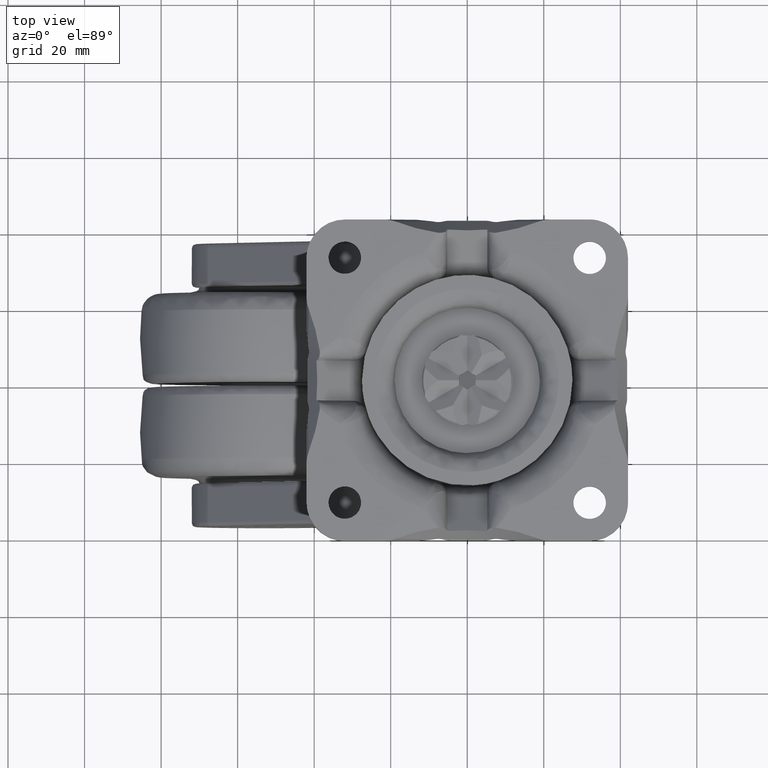
[diagram: clean part render]
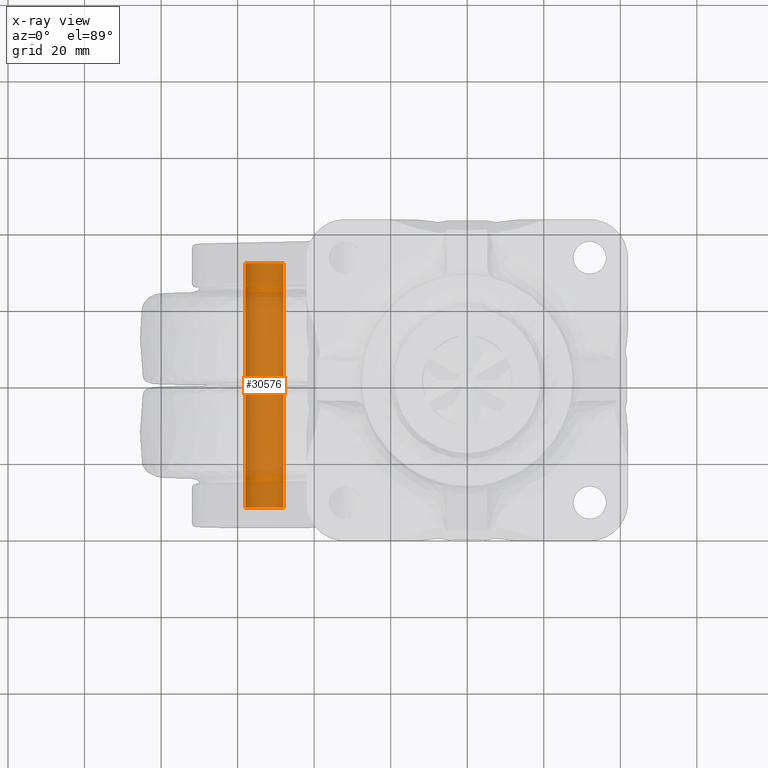
[diagram: x-ray — body ghosted, one internal face saturated and labeled with its STEP entity id]
A machine part, top view, then the same camera in x-ray: the body is ghosted and one INTERNAL B-rep face — a face not visible from any outside direction — is saturated and labeled: STEP entity #30576.
In plain terms, the highlighted face is a freeform B-spline surface patch.
Its self-contained STEP definition (entity closure, byte-faithful):
#30478=CARTESIAN_POINT('',(-48.038668930872305,33.547500000000014,-63.879359989600850));
#30479=CARTESIAN_POINT('',(-48.591343709333891,33.547500000000014,-59.461335847487774));
#30480=CARTESIAN_POINT('',(-53.043632677491871,33.547500000000007,-59.500190384679136));
#30481=CARTESIAN_POINT('',(-58.043442292812720,33.547500000000007,-59.543823062171029));
#30482=CARTESIAN_POINT('',(-57.999809615320864,33.547500000000007,-64.543632677491871));
#30483=CARTESIAN_POINT('',(-48.038668930872305,-33.587437500000007,-63.879359989600850));
#30484=CARTESIAN_POINT('',(-48.591343709333891,-33.587437500000000,-59.461335847487774));
#30485=CARTESIAN_POINT('',(-53.043632677491871,-33.587437500000007,-59.500190384679136));
#30486=CARTESIAN_POINT('',(-58.043442292812720,-33.587437500000007,-59.543823062171029));
#30487=CARTESIAN_POINT('',(-57.999809615320864,-33.587437500000007,-64.543632677491871));
#30495=(BOUNDED_SURFACE()B_SPLINE_SURFACE(2,1,((#30478,#30483),(#30479,#30484),(#30480,#30485),(#30481,#30486),(#30482,#30487)),.UNSPECIFIED.,.F.,.F.,.U.)B_SPLINE_SURFACE_WITH_KNOTS((3,2,3),(2,2),(0.0,7.621529547664949,15.905800795126851),(0.0,67.134937500000021),.UNSPECIFIED.)GEOMETRIC_REPRESENTATION_ITEM()RATIONAL_B_SPLINE_SURFACE(((0.956886118190660,0.956886118190660),(0.730538238691624,0.730538238691624),(1.0,1.0),(0.707106781186548,0.707106781186548),(1.0,1.0)))REPRESENTATION_ITEM('')SURFACE());
#30496=CARTESIAN_POINT('',(-53.0,31.949999999999999,-59.500000000000007));
#30497=VERTEX_POINT('',#30496);
#30498=CARTESIAN_POINT('',(-48.038668930892463,31.949999999999999,-63.879359989439791));
#30499=VERTEX_POINT('',#30498);
#30500=CARTESIAN_POINT('',(-53.0,31.949999999999999,-59.500000000000007));
#30501=CARTESIAN_POINT('',(-48.586506999537647,31.949999999999996,-59.500000000000021));
#30502=CARTESIAN_POINT('',(-48.038668930892449,31.949999999999996,-63.879359989439791));
#30510=(BOUNDED_CURVE()B_SPLINE_CURVE(2,(#30500,#30501,#30502),.UNSPECIFIED.,.F.,.U.)B_SPLINE_CURVE_WITH_KNOTS((3,3),(0.500000000000000,0.728526071018349),.UNSPECIFIED.)CURVE()GEOMETRIC_REPRESENTATION_ITEM()RATIONAL_B_SPLINE_CURVE((1.0,0.732265053906577,0.954005430253469))REPRESENTATION_ITEM(''));
#30511=EDGE_CURVE('',#30497,#30499,#30510,.T.);
#30512=ORIENTED_EDGE('',*,*,#30511,.F.);
#30513=CARTESIAN_POINT('',(-57.999809615317147,31.949999999999999,-64.543632677916406));
#30514=VERTEX_POINT('',#30513);
#30515=CARTESIAN_POINT('',(-57.999809615317147,31.950000000000003,-64.543632677916406));
#30516=CARTESIAN_POINT('',(-57.999999999999993,31.949999999999999,-64.521816754528075));
#30517=CARTESIAN_POINT('',(-57.999999999999993,31.949999999999999,-64.500000000000000));
#30518=CARTESIAN_POINT('',(-57.999999999999979,31.949999999999992,-59.500000000000007));
#30519=CARTESIAN_POINT('',(-53.0,31.949999999999999,-59.500000000000007));
#30527=(BOUNDED_CURVE()B_SPLINE_CURVE(2,(#30515,#30516,#30517,#30518,#30519),.UNSPECIFIED.,.F.,.U.)B_SPLINE_CURVE_WITH_KNOTS((3,2,3),(0.248460105635100,0.250000000000000,0.500000000000000),.UNSPECIFIED.)CURVE()GEOMETRIC_REPRESENTATION_ITEM()RATIONAL_B_SPLINE_CURVE((0.996414028031180,0.998195901531327,1.0,0.707106781186548,1.0))REPRESENTATION_ITEM(''));
#30528=EDGE_CURVE('',#30514,#30497,#30527,.T.);
#30529=ORIENTED_EDGE('',*,*,#30528,.F.);
#30530=CARTESIAN_POINT('',(-57.999809615316842,-31.949999999999999,-64.543632677952559));
#30531=VERTEX_POINT('',#30530);
#30532=CARTESIAN_POINT('',(-57.999809615317147,31.949999999999999,-64.543632677916406));
#30533=CARTESIAN_POINT('',(-57.999809615316842,-31.949999999999999,-64.543632677952559));
#30534=QUASI_UNIFORM_CURVE('',1,(#30532,#30533),.UNSPECIFIED.,.F.,.U.);
#30535=EDGE_CURVE('',#30514,#30531,#30534,.T.);
#30536=ORIENTED_EDGE('',*,*,#30535,.T.);
#30537=CARTESIAN_POINT('',(-53.0,-31.949999999999999,-59.500000000000007));
#30538=VERTEX_POINT('',#30537);
#30539=CARTESIAN_POINT('',(-53.0,-31.949999999999999,-59.500000000000007));
#30540=CARTESIAN_POINT('',(-57.999999999999979,-31.949999999999992,-59.500000000000007));
#30541=CARTESIAN_POINT('',(-57.999999999999993,-31.949999999999999,-64.500000000000000));
#30542=CARTESIAN_POINT('',(-57.999999999999993,-31.949999999999996,-64.521816754564227));
#30543=CARTESIAN_POINT('',(-57.999809615316835,-31.950000000000003,-64.543632677952559));
#30551=(BOUNDED_CURVE()B_SPLINE_CURVE(2,(#30539,#30540,#30541,#30542,#30543),.UNSPECIFIED.,.F.,.U.)B_SPLINE_CURVE_WITH_KNOTS((3,2,3),(0.500000000000000,0.750000000000000,0.751539894367447),.UNSPECIFIED.)CURVE()GEOMETRIC_REPRESENTATION_ITEM()RATIONAL_B_SPLINE_CURVE((1.0,0.707106781186548,1.0,0.998195901528342,0.996414028025284))REPRESENTATION_ITEM(''));
#30552=EDGE_CURVE('',#30538,#30531,#30551,.T.);
#30553=ORIENTED_EDGE('',*,*,#30552,.F.);
#30554=CARTESIAN_POINT('',(-48.038668930908557,-31.949999999999999,-63.879359989311013));
#30555=VERTEX_POINT('',#30554);
#30556=CARTESIAN_POINT('',(-48.038668930908557,-31.949999999999992,-63.879359989311020));
#30557=CARTESIAN_POINT('',(-48.586506999768531,-31.949999999999996,-59.500000000000007));
#30558=CARTESIAN_POINT('',(-53.0,-31.949999999999999,-59.500000000000007));
#30566=(BOUNDED_CURVE()B_SPLINE_CURVE(2,(#30556,#30557,#30558),.UNSPECIFIED.,.F.,.U.)B_SPLINE_CURVE_WITH_KNOTS((3,3),(0.271473928990405,0.500000000000000),.UNSPECIFIED.)CURVE()GEOMETRIC_REPRESENTATION_ITEM()RATIONAL_B_SPLINE_CURVE((0.954005430236481,0.732265053916833,1.0))REPRESENTATION_ITEM(''));
#30567=EDGE_CURVE('',#30555,#30538,#30566,.T.);
#30568=ORIENTED_EDGE('',*,*,#30567,.F.);
#30569=CARTESIAN_POINT('',(-48.038668930892463,31.949999999999999,-63.879359989439791));
#30570=CARTESIAN_POINT('',(-48.038668930908557,-31.949999999999999,-63.879359989311013));
#30571=QUASI_UNIFORM_CURVE('',1,(#30569,#30570),.UNSPECIFIED.,.F.,.U.);
#30572=EDGE_CURVE('',#30499,#30555,#30571,.T.);
#30573=ORIENTED_EDGE('',*,*,#30572,.F.);
#30574=EDGE_LOOP('',(#30512,#30529,#30536,#30553,#30568,#30573));
#30575=FACE_OUTER_BOUND('',#30574,.T.);
#30576=ADVANCED_FACE('',(#30575),#30495,.T.);